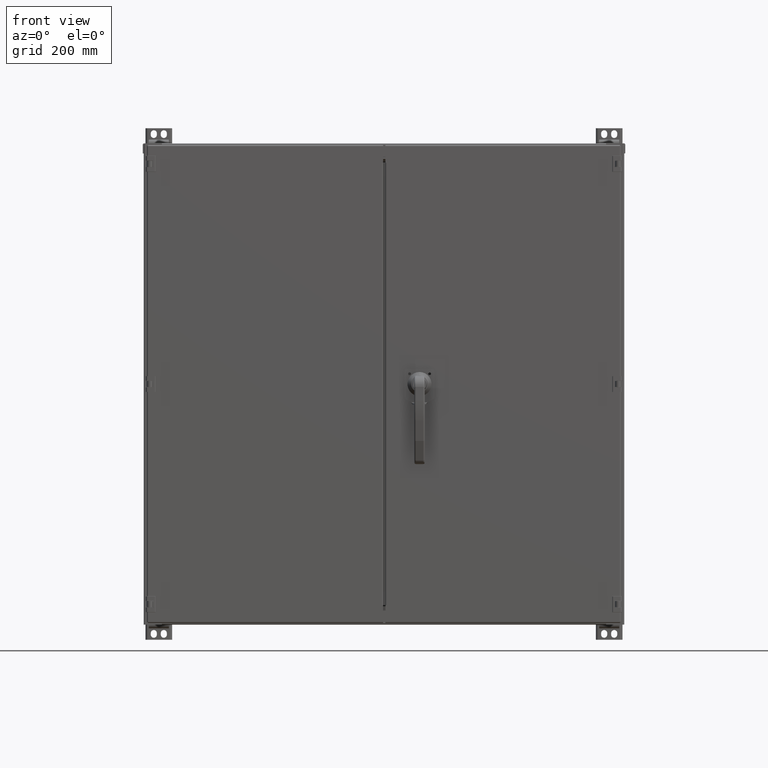
[diagram: clean part render]
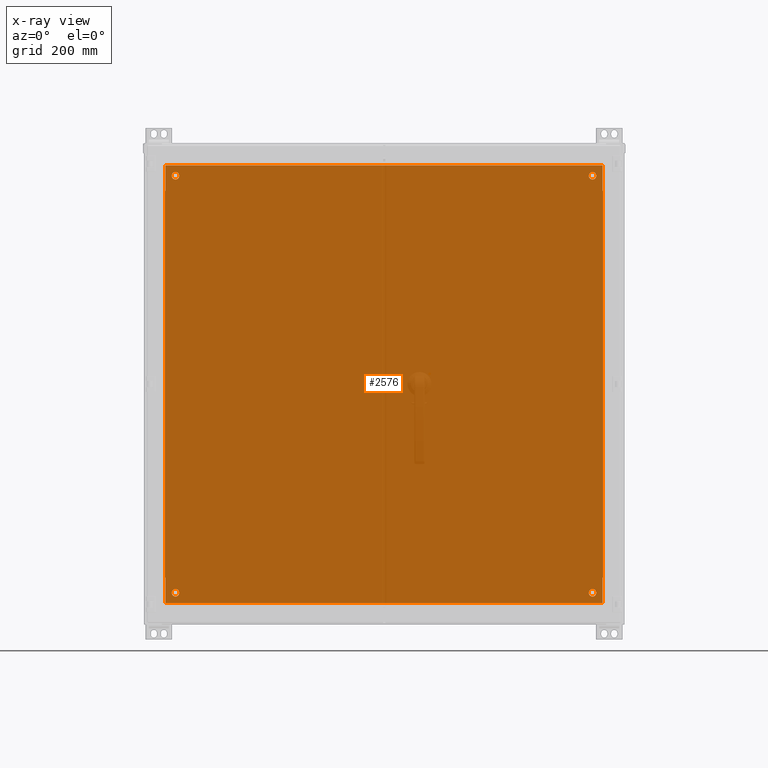
[diagram: x-ray — body ghosted, one internal face saturated and labeled with its STEP entity id]
A machine part, front view, then the same camera in x-ray: the body is ghosted and one INTERNAL B-rep face — a face not visible from any outside direction — is saturated and labeled: STEP entity #2576.
In plain terms, the highlighted planar face has unit normal (0, -1, 0).
Its self-contained STEP definition (entity closure, byte-faithful):
#2576 = ADVANCED_FACE( '', ( #6014, #6015, #6016, #6017, #6018 ), #6019, .T. );
#6014 = FACE_BOUND( '', #11199, .T. );
#6015 = FACE_BOUND( '', #11200, .T. );
#6016 = FACE_BOUND( '', #11201, .T. );
#6017 = FACE_BOUND( '', #11202, .T. );
#6018 = FACE_OUTER_BOUND( '', #11203, .T. );
#6019 = PLANE( '', #11204 );
#11199 = EDGE_LOOP( '', ( #22035 ) );
#11200 = EDGE_LOOP( '', ( #22036 ) );
#11201 = EDGE_LOOP( '', ( #22037 ) );
#11202 = EDGE_LOOP( '', ( #22038 ) );
#11203 = EDGE_LOOP( '', ( #22039, #22040, #22041, #22042, #22043, #22044, #22045, #22046, #22047, #22048, #22049, #22050 ) );
#11204 = AXIS2_PLACEMENT_3D( '', #22051, #22052, #22053 );
#22035 = ORIENTED_EDGE( '', *, *, #35438, .T. );
#22036 = ORIENTED_EDGE( '', *, *, #35439, .T. );
#22037 = ORIENTED_EDGE( '', *, *, #35440, .T. );
#22038 = ORIENTED_EDGE( '', *, *, #35441, .T. );
#22039 = ORIENTED_EDGE( '', *, *, #35442, .T. );
#22040 = ORIENTED_EDGE( '', *, *, #34865, .T. );
#22041 = ORIENTED_EDGE( '', *, *, #35443, .T. );
#22042 = ORIENTED_EDGE( '', *, *, #35444, .T. );
#22043 = ORIENTED_EDGE( '', *, *, #35445, .T. );
#22044 = ORIENTED_EDGE( '', *, *, #35446, .T. );
#22045 = ORIENTED_EDGE( '', *, *, #35447, .T. );
#22046 = ORIENTED_EDGE( '', *, *, #35448, .T. );
#22047 = ORIENTED_EDGE( '', *, *, #35060, .T. );
#22048 = ORIENTED_EDGE( '', *, *, #35449, .T. );
#22049 = ORIENTED_EDGE( '', *, *, #35450, .T. );
#22050 = ORIENTED_EDGE( '', *, *, #35451, .T. );
#22051 = CARTESIAN_POINT( '', ( -431.800000000000, 0.000000000000000, -431.800000000000 ) );
#22052 = DIRECTION( '', ( 0.000000000000000, -1.00000000000000, 0.000000000000000 ) );
#22053 = DIRECTION( '', ( 0.000000000000000, 0.000000000000000, -1.00000000000000 ) );
#34865 = EDGE_CURVE( '', #40393, #40394, #40395, .T. );
#35060 = EDGE_CURVE( '', #40709, #40710, #40711, .T. );
#35438 = EDGE_CURVE( '', #41328, #41328, #41329, .T. );
#35439 = EDGE_CURVE( '', #41330, #41330, #41331, .T. );
#35440 = EDGE_CURVE( '', #41332, #41332, #41333, .T. );
#35441 = EDGE_CURVE( '', #41334, #41334, #41335, .T. );
#35442 = EDGE_CURVE( '', #41336, #40393, #41337, .T. );
#35443 = EDGE_CURVE( '', #40394, #41338, #41339, .T. );
#35444 = EDGE_CURVE( '', #41338, #41340, #41341, .T. );
#35445 = EDGE_CURVE( '', #41340, #41342, #41343, .T. );
#35446 = EDGE_CURVE( '', #41342, #41344, #41345, .T. );
#35447 = EDGE_CURVE( '', #41344, #41346, #41347, .T. );
#35448 = EDGE_CURVE( '', #41346, #40709, #41348, .T. );
#35449 = EDGE_CURVE( '', #40710, #41349, #41350, .T. );
#35450 = EDGE_CURVE( '', #41349, #41351, #41352, .T. );
#35451 = EDGE_CURVE( '', #41351, #41336, #41353, .T. );
#40393 = VERTEX_POINT( '', #50423 );
#40394 = VERTEX_POINT( '', #50424 );
#40395 = LINE( '', #50425, #50426 );
#40709 = VERTEX_POINT( '', #51058 );
#40710 = VERTEX_POINT( '', #51059 );
#40711 = LINE( '', #51060, #51061 );
#41328 = VERTEX_POINT( '', #52393 );
#41329 = CIRCLE( '', #52394, 7.13740000000000 );
#41330 = VERTEX_POINT( '', #52395 );
#41331 = CIRCLE( '', #52396, 7.13740000000000 );
#41332 = VERTEX_POINT( '', #52397 );
#41333 = CIRCLE( '', #52398, 7.13740000000000 );
#41334 = VERTEX_POINT( '', #52399 );
#41335 = CIRCLE( '', #52400, 7.13740000000000 );
#41336 = VERTEX_POINT( '', #52401 );
#41337 = LINE( '', #52402, #52403 );
#41338 = VERTEX_POINT( '', #52404 );
#41339 = LINE( '', #52405, #52406 );
#41340 = VERTEX_POINT( '', #52407 );
#41341 = LINE( '', #52408, #52409 );
#41342 = VERTEX_POINT( '', #52410 );
#41343 = LINE( '', #52411, #52412 );
#41344 = VERTEX_POINT( '', #52413 );
#41345 = LINE( '', #52414, #52415 );
#41346 = VERTEX_POINT( '', #52416 );
#41347 = LINE( '', #52417, #52418 );
#41348 = LINE( '', #52419, #52420 );
#41349 = VERTEX_POINT( '', #52421 );
#41350 = LINE( '', #52422, #52423 );
#41351 = VERTEX_POINT( '', #52424 );
#41352 = LINE( '', #52425, #52426 );
#41353 = LINE( '', #52427, #52428 );
#50423 = CARTESIAN_POINT( '', ( 415.925000000000, 0.000000000000000, 416.763200000000 ) );
#50424 = CARTESIAN_POINT( '', ( -415.925000000000, 0.000000000000000, 416.763200000000 ) );
#50425 = CARTESIAN_POINT( '', ( 415.925000000000, 0.000000000000000, 416.763200000000 ) );
#50426 = VECTOR( '', #62959, 1000.00000000000 );
#51058 = CARTESIAN_POINT( '', ( 415.925000000000, 0.000000000000000, -416.763200000000 ) );
#51059 = CARTESIAN_POINT( '', ( 415.925000000000, 0.000000000000000, -368.300000000000 ) );
#51060 = CARTESIAN_POINT( '', ( 415.925000000000, 0.000000000000000, -431.800000000000 ) );
#51061 = VECTOR( '', #63158, 1000.00000000000 );
#52393 = CARTESIAN_POINT( '', ( 404.012400000000, 0.000000000000000, -396.875000000000 ) );
#52394 = AXIS2_PLACEMENT_3D( '', #63440, #63441, #63442 );
#52395 = CARTESIAN_POINT( '', ( -389.737600000000, 0.000000000000000, 396.875000000000 ) );
#52396 = AXIS2_PLACEMENT_3D( '', #63443, #63444, #63445 );
#52397 = CARTESIAN_POINT( '', ( 404.012400000000, 0.000000000000000, 396.875000000000 ) );
#52398 = AXIS2_PLACEMENT_3D( '', #63446, #63447, #63448 );
#52399 = CARTESIAN_POINT( '', ( -389.737600000000, 0.000000000000000, -396.875000000000 ) );
#52400 = AXIS2_PLACEMENT_3D( '', #63449, #63450, #63451 );
#52401 = CARTESIAN_POINT( '', ( 415.925000000000, 0.000000000000000, 368.300000000000 ) );
#52402 = CARTESIAN_POINT( '', ( 415.925000000000, 0.000000000000000, -431.800000000000 ) );
#52403 = VECTOR( '', #63452, 1000.00000000000 );
#52404 = CARTESIAN_POINT( '', ( -415.925000000000, 0.000000000000000, 368.300000000000 ) );
#52405 = CARTESIAN_POINT( '', ( -415.925000000000, 0.000000000000000, -431.800000000000 ) );
#52406 = VECTOR( '', #63453, 1000.00000000000 );
#52407 = CARTESIAN_POINT( '', ( -416.763200000000, 0.000000000000000, 368.300000000000 ) );
#52408 = CARTESIAN_POINT( '', ( -431.800000000000, 0.000000000000000, 368.300000000000 ) );
#52409 = VECTOR( '', #63454, 1000.00000000000 );
#52410 = CARTESIAN_POINT( '', ( -416.763200000000, 0.000000000000000, -368.300000000000 ) );
#52411 = CARTESIAN_POINT( '', ( -416.763200000000, 0.000000000000000, 368.300000000000 ) );
#52412 = VECTOR( '', #63455, 1000.00000000000 );
#52413 = CARTESIAN_POINT( '', ( -415.925000000000, 0.000000000000000, -368.300000000000 ) );
#52414 = CARTESIAN_POINT( '', ( -431.800000000000, 0.000000000000000, -368.300000000000 ) );
#52415 = VECTOR( '', #63456, 1000.00000000000 );
#52416 = CARTESIAN_POINT( '', ( -415.925000000000, 0.000000000000000, -416.763200000000 ) );
#52417 = CARTESIAN_POINT( '', ( -415.925000000000, 0.000000000000000, -431.800000000000 ) );
#52418 = VECTOR( '', #63457, 1000.00000000000 );
#52419 = CARTESIAN_POINT( '', ( -415.925000000000, 0.000000000000000, -416.763200000000 ) );
#52420 = VECTOR( '', #63458, 1000.00000000000 );
#52421 = CARTESIAN_POINT( '', ( 416.763200000000, 0.000000000000000, -368.300000000000 ) );
#52422 = CARTESIAN_POINT( '', ( -431.800000000000, 0.000000000000000, -368.300000000000 ) );
#52423 = VECTOR( '', #63459, 1000.00000000000 );
#52424 = CARTESIAN_POINT( '', ( 416.763200000000, 0.000000000000000, 368.300000000000 ) );
#52425 = CARTESIAN_POINT( '', ( 416.763200000000, 0.000000000000000, -368.300000000000 ) );
#52426 = VECTOR( '', #63460, 1000.00000000000 );
#52427 = CARTESIAN_POINT( '', ( -431.800000000000, 0.000000000000000, 368.300000000000 ) );
#52428 = VECTOR( '', #63461, 1000.00000000000 );
#62959 = DIRECTION( '', ( -1.00000000000000, 0.000000000000000, 0.000000000000000 ) );
#63158 = DIRECTION( '', ( 0.000000000000000, 0.000000000000000, 1.00000000000000 ) );
#63440 = CARTESIAN_POINT( '', ( 396.875000000000, 0.000000000000000, -396.875000000000 ) );
#63441 = DIRECTION( '', ( -0.000000000000000, 1.00000000000000, 0.000000000000000 ) );
#63442 = DIRECTION( '', ( 1.00000000000000, 0.000000000000000, 0.000000000000000 ) );
#63443 = CARTESIAN_POINT( '', ( -396.875000000000, 0.000000000000000, 396.875000000000 ) );
#63444 = DIRECTION( '', ( -0.000000000000000, 1.00000000000000, 0.000000000000000 ) );
#63445 = DIRECTION( '', ( 1.00000000000000, 0.000000000000000, 0.000000000000000 ) );
#63446 = CARTESIAN_POINT( '', ( 396.875000000000, 0.000000000000000, 396.875000000000 ) );
#63447 = DIRECTION( '', ( -0.000000000000000, 1.00000000000000, 0.000000000000000 ) );
#63448 = DIRECTION( '', ( 1.00000000000000, 0.000000000000000, 0.000000000000000 ) );
#63449 = CARTESIAN_POINT( '', ( -396.875000000000, 0.000000000000000, -396.875000000000 ) );
#63450 = DIRECTION( '', ( -0.000000000000000, 1.00000000000000, 0.000000000000000 ) );
#63451 = DIRECTION( '', ( 1.00000000000000, 0.000000000000000, 0.000000000000000 ) );
#63452 = DIRECTION( '', ( 0.000000000000000, 0.000000000000000, 1.00000000000000 ) );
#63453 = DIRECTION( '', ( 0.000000000000000, 0.000000000000000, -1.00000000000000 ) );
#63454 = DIRECTION( '', ( -1.00000000000000, 0.000000000000000, -3.49676543189027E-015 ) );
#63455 = DIRECTION( '', ( 0.000000000000000, 0.000000000000000, -1.00000000000000 ) );
#63456 = DIRECTION( '', ( 1.00000000000000, 0.000000000000000, -3.49676543189027E-015 ) );
#63457 = DIRECTION( '', ( 0.000000000000000, 0.000000000000000, -1.00000000000000 ) );
#63458 = DIRECTION( '', ( 1.00000000000000, 0.000000000000000, 0.000000000000000 ) );
#63459 = DIRECTION( '', ( 1.00000000000000, 0.000000000000000, 3.49676543189027E-015 ) );
#63460 = DIRECTION( '', ( 0.000000000000000, 0.000000000000000, 1.00000000000000 ) );
#63461 = DIRECTION( '', ( -1.00000000000000, 0.000000000000000, 3.49676543189027E-015 ) );